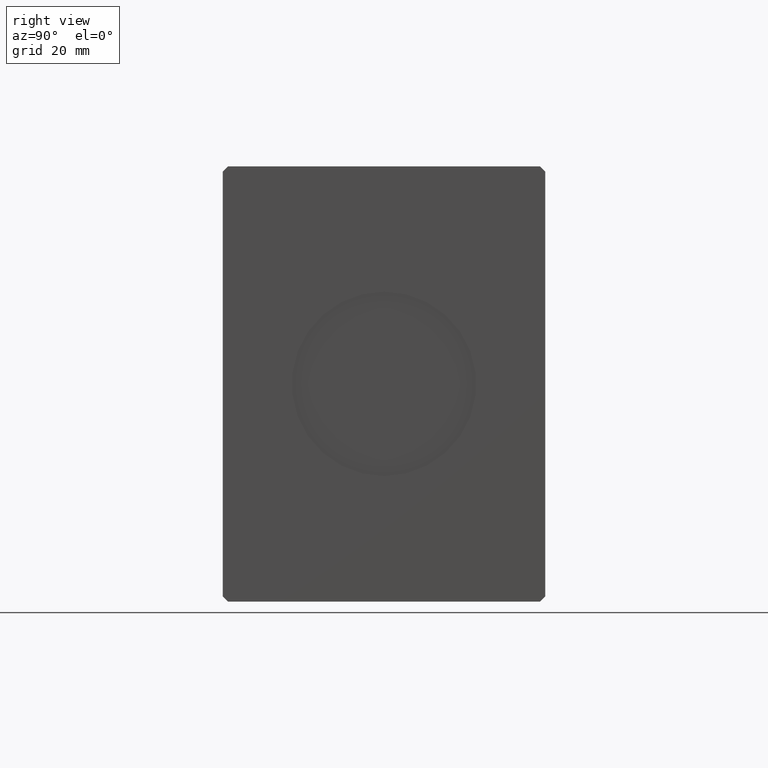
[diagram: clean part render]
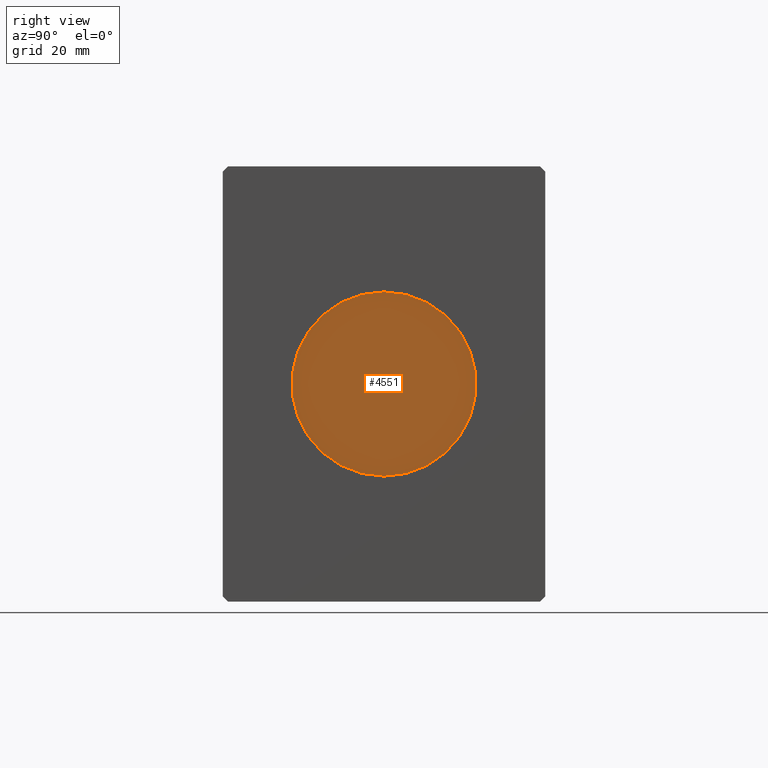
[diagram: same view with one face highlighted and labeled with its STEP entity id]
A machine part, right view. The second image highlights one B-rep face of the part: STEP entity #4551.
In plain terms, the highlighted planar face has unit normal (1, 0, 0).
Its self-contained STEP definition (entity closure, byte-faithful):
#1433 = PLANE ( 'NONE',  #38150 ) ;
#1742 = DIRECTION ( 'NONE',  ( 1.000000000000000000, 0.000000000000000000, 0.000000000000000000 ) ) ;
#2790 = CIRCLE ( 'NONE', #31170, 18.00000000000000000 ) ;
#4551 = ADVANCED_FACE ( 'NONE', ( #17151 ), #1433, .T. ) ;
#7858 = DIRECTION ( 'NONE',  ( 0.000000000000000000, 0.000000000000000000, -1.000000000000000000 ) ) ;
#9875 = AXIS2_PLACEMENT_3D ( 'NONE', #14960, #24468, #37066 ) ;
#13893 = EDGE_CURVE ( 'NONE', #16783, #22934, #27699, .T. ) ;
#14046 = CARTESIAN_POINT ( 'NONE',  ( 95.79999999999999716, 0.000000000000000000, 0.000000000000000000 ) ) ;
#14960 = CARTESIAN_POINT ( 'NONE',  ( 95.79999999999999716, 0.000000000000000000, 0.000000000000000000 ) ) ;
#16783 = VERTEX_POINT ( 'NONE', #18758 ) ;
#17151 = FACE_OUTER_BOUND ( 'NONE', #27059, .T. ) ;
#18758 = CARTESIAN_POINT ( 'NONE',  ( 95.79999999999999716, 0.000000000000000000, -18.00000000000000000 ) ) ;
#19072 = ORIENTED_EDGE ( 'NONE', *, *, #21846, .T. ) ;
#21213 = ORIENTED_EDGE ( 'NONE', *, *, #13893, .T. ) ;
#21846 = EDGE_CURVE ( 'NONE', #22934, #16783, #2790, .T. ) ;
#22934 = VERTEX_POINT ( 'NONE', #30012 ) ;
#24468 = DIRECTION ( 'NONE',  ( 1.000000000000000000, 0.000000000000000000, 0.000000000000000000 ) ) ;
#27059 = EDGE_LOOP ( 'NONE', ( #21213, #19072 ) ) ;
#27699 = CIRCLE ( 'NONE', #9875, 18.00000000000000000 ) ;
#29856 = CARTESIAN_POINT ( 'NONE',  ( 95.79999999999999716, 0.000000000000000000, 0.000000000000000000 ) ) ;
#30012 = CARTESIAN_POINT ( 'NONE',  ( 95.79999999999999716, 2.204364238465235428E-15, 18.00000000000000000 ) ) ;
#30472 = DIRECTION ( 'NONE',  ( 0.000000000000000000, 0.000000000000000000, -1.000000000000000000 ) ) ;
#31170 = AXIS2_PLACEMENT_3D ( 'NONE', #29856, #1742, #30472 ) ;
#36166 = DIRECTION ( 'NONE',  ( 1.000000000000000000, 0.000000000000000000, 0.000000000000000000 ) ) ;
#37066 = DIRECTION ( 'NONE',  ( 0.000000000000000000, 0.000000000000000000, -1.000000000000000000 ) ) ;
#38150 = AXIS2_PLACEMENT_3D ( 'NONE', #14046, #36166, #7858 ) ;